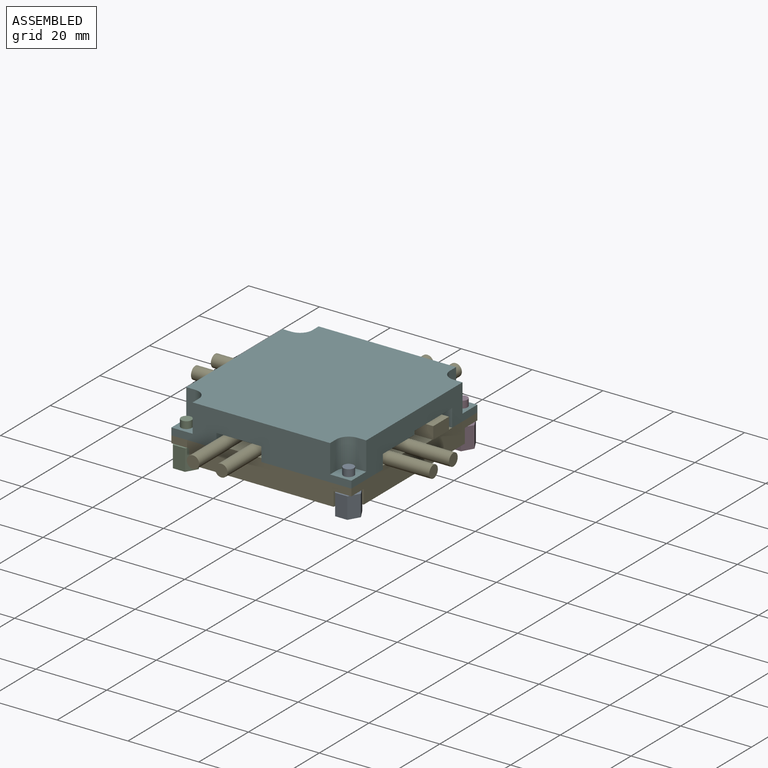
[diagram: assembled view]
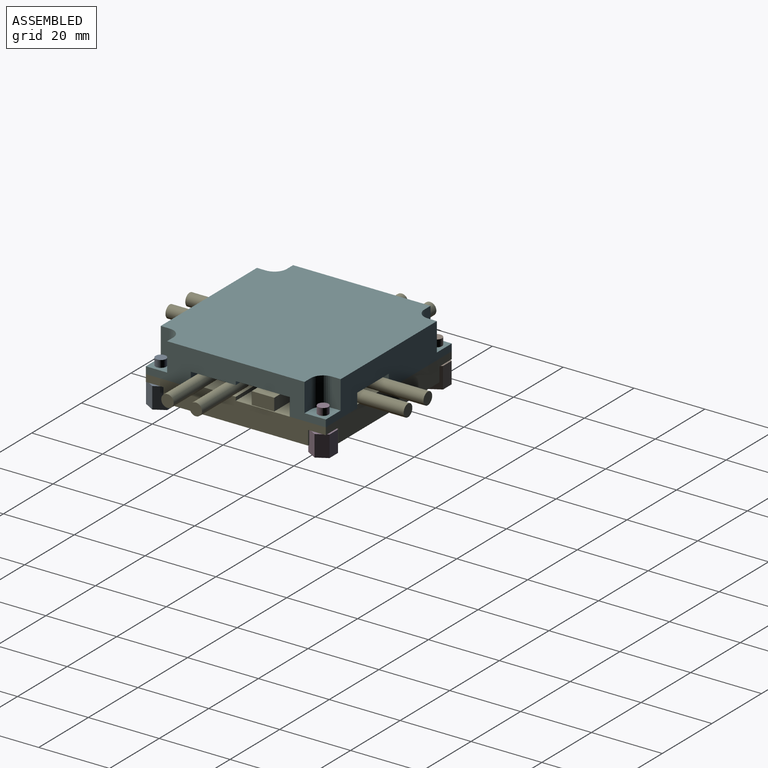
[diagram: assembled view, second angle]
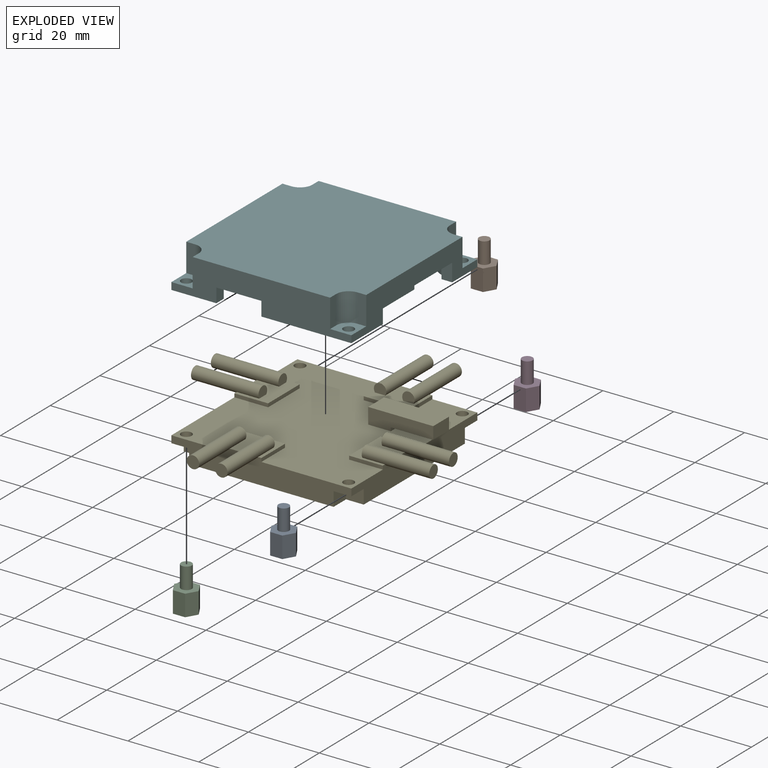
[diagram: exploded view]
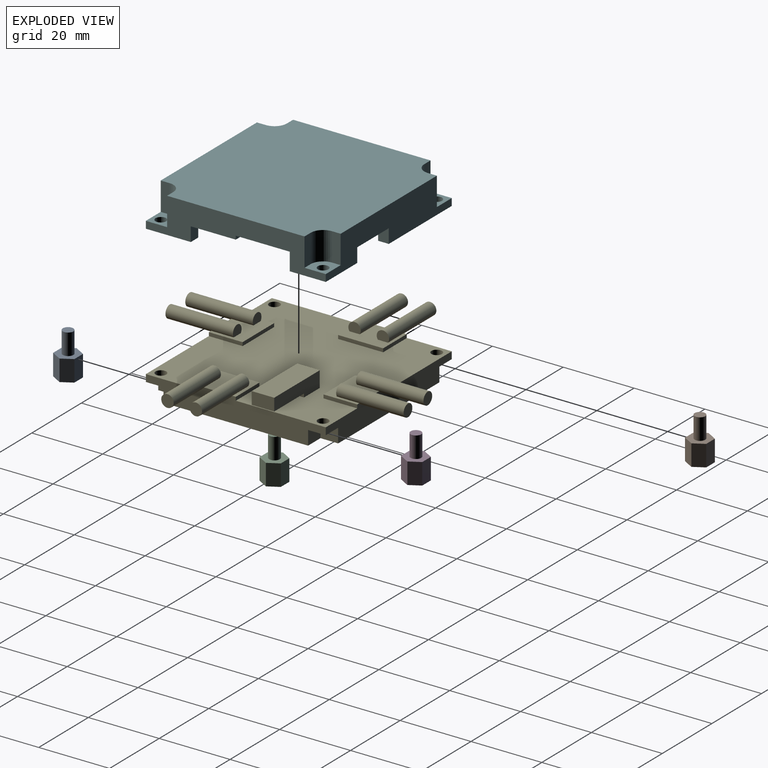
[diagram: exploded view, second angle]
ASSEMBLY  parts=6 mates=5
PART A: 12 faces, bbox 6.9x6x12 mm
  f0: plane 6x3mm, normal (-0.87,0.5,0), area 20.8mm2, adj f1,f6,f7,f9
  f1: plane 6x3mm, normal (-0.87,-0.5,0), area 20.8mm2, adj f0,f2,f7,f9
  f2: plane 6x3.46mm, normal (0,-1,0), area 20.8mm2, adj f1,f3,f7,f9
  f3: plane 6x3mm, normal (0.87,-0.5,0), area 20.8mm2, adj f2,f4,f7,f9
  f4: plane 6x3mm, normal (0.87,0.5,0), area 20.8mm2, adj f3,f6,f7,f9
  f5: cylinder r=1.5mm len=4mm, axis (0,0,-1), area 37.7mm2, adj f7,f8
  f6: plane 6x3.46mm, normal (0,1,0), area 20.8mm2, adj f0,f4,f7,f9
  f7: plane 6.93x6mm, normal (0,0,-1), area 24.1mm2, adj f0,f1,f2,f3,f4,f5,f6
  f8: plane 3x3mm, normal (0,0,-1), area 7.1mm2, adj f5
  f9: plane 6.93x6mm, normal (0,0,1), area 24.1mm2, adj f0,f1,f2,f3,f4,f6,f10
  f10: cylinder r=1.5mm len=6mm, axis (0,0,-1), area 56.5mm2, adj f9,f11
  f11: plane 3x3mm, normal (0,0,1), area 7.1mm2, adj f10
PART B: same geometry as A
PART C: same geometry as A
PART D: same geometry as A
PART E: 69 faces, bbox 76.2x76.2x10.5 mm
  f0: plane 50.8x7mm, normal (1,0,0), area 274.5mm2, adj f1,f2,f9,f13,f26,f28,f47,f49
  f1: plane 50.8x7mm, normal (0,1,0), area 274.5mm2, adj f0,f2,f8,f10,f22,f24,f38,f40
  f2: plane 50.8x50.8mm, normal (0,0,-1), area 2480.6mm2, adj f0,f1,f8,f9,f57,f58,f60,f61
  f3: cylinder r=1.5mm len=3mm, axis (0,0,-1), area 18.8mm2, adj f50,f68
  f4: cylinder r=1.5mm len=3mm, axis (0,0,-1), area 18.8mm2, adj f50,f65
  f5: cylinder r=1.5mm len=3mm, axis (0,0,-1), area 18.8mm2, adj f50,f62
  f6: cylinder r=1.5mm len=3mm, axis (0,0,-1), area 18.8mm2, adj f50,f59
  f7: plane 6.35x1mm, normal (1,0,0), area 6.4mm2, adj f50,f51,f53,f55
  f8: plane 50.8x7mm, normal (-1,0,0), area 274.5mm2, adj f1,f2,f9,f11,f18,f20,f41,f43
  f9: plane 50.8x7mm, normal (0,-1,0), area 274.5mm2, adj f0,f2,f8,f12,f14,f16,f44,f46
  f10: plane 12.7x9.53mm, normal (0,0,1), area 84.5mm2, adj f1,f22,f24,f34,f35,f38,f39,f40
  f11: plane 12.7x9.53mm, normal (0,0,1), area 84.5mm2, adj f8,f18,f20,f32,f33,f41,f42,f43
  f12: plane 12.7x9.53mm, normal (0,0,1), area 84.5mm2, adj f9,f14,f16,f30,f31,f44,f45,f46
  f13: plane 12.7x9.53mm, normal (0,0,1), area 84.5mm2, adj f0,f26,f28,f36,f37,f47,f48,f49
  f14: cylinder r=1.75mm len=19.05mm, axis (0,1,0), area 188.1mm2, adj f9,f12,f15,f30
  f15: plane 3.5x3.5mm, normal (0,-1,0), area 9.6mm2, adj f14
  f16: cylinder r=1.75mm len=19.05mm, axis (0,1,0), area 188.1mm2, adj f9,f12,f17,f31
  f17: plane 3.5x3.5mm, normal (0,-1,0), area 9.6mm2, adj f16
  f18: cylinder r=1.75mm len=19.05mm, axis (1,0,0), area 188.1mm2, adj f8,f11,f19,f32
  f19: plane 3.5x3.5mm, normal (-1,0,0), area 9.6mm2, adj f18
  f20: cylinder r=1.75mm len=19.05mm, axis (1,0,0), area 188.1mm2, adj f8,f11,f21,f33
  f21: plane 3.5x3.5mm, normal (-1,0,0), area 9.6mm2, adj f20
  f22: cylinder r=1.75mm len=19.05mm, axis (0,-1,0), area 188.1mm2, adj f1,f10,f23,f34
  f23: plane 3.5x3.5mm, normal (0,1,0), area 9.6mm2, adj f22
  f24: cylinder r=1.75mm len=19.05mm, axis (0,-1,0), area 188.1mm2, adj f1,f10,f25,f35
  f25: plane 3.5x3.5mm, normal (0,1,0), area 9.6mm2, adj f24
  f26: cylinder r=1.75mm len=19.05mm, axis (-1,0,0), area 188.1mm2, adj f0,f13,f27,f36
  f27: plane 3.5x3.5mm, normal (1,0,0), area 9.6mm2, adj f26
  f28: cylinder r=1.75mm len=19.05mm, axis (-1,0,0), area 188.1mm2, adj f0,f13,f29,f37
  f29: plane 3.5x3.5mm, normal (1,0,0), area 9.6mm2, adj f28
  f30: plane 3.5x2.75mm, normal (0,1,0), area 8.1mm2, adj f12,f14
  f31: plane 3.5x2.75mm, normal (0,1,0), area 8.1mm2, adj f12,f16
  f32: plane 3.5x2.75mm, normal (1,0,0), area 8.1mm2, adj f11,f18
  f33: plane 3.5x2.75mm, normal (1,0,0), area 8.1mm2, adj f11,f20
  f34: plane 3.5x2.75mm, normal (0,-1,0), area 8.1mm2, adj f10,f22
  f35: plane 3.5x2.75mm, normal (0,-1,0), area 8.1mm2, adj f10,f24
  f36: plane 3.5x2.75mm, normal (-1,0,0), area 8.1mm2, adj f13,f26
  f37: plane 3.5x2.75mm, normal (-1,0,0), area 8.1mm2, adj f13,f28
  f38: plane 9.53x1mm, normal (1,0,0), area 9.5mm2, adj f1,f10,f39,f50
  f39: plane 12.7x1mm, normal (0,-1,0), area 12.7mm2, adj f10,f38,f40,f50
  f40: plane 9.53x1mm, normal (-1,0,0), area 9.5mm2, adj f1,f10,f39,f50
  f41: plane 9.53x1mm, normal (0,1,0), area 9.5mm2, adj f8,f11,f42,f50
  f42: plane 12.7x1mm, normal (1,0,0), area 12.7mm2, adj f11,f41,f43,f50
  f43: plane 9.53x1mm, normal (0,-1,0), area 9.5mm2, adj f8,f11,f42,f50
  f44: plane 9.53x1mm, normal (-1,0,0), area 9.5mm2, adj f9,f12,f45,f50
  f45: plane 12.7x1mm, normal (0,1,0), area 12.7mm2, adj f12,f44,f46,f50
  f46: plane 9.53x1mm, normal (1,0,0), area 9.5mm2, adj f9,f12,f45,f50
  f47: plane 9.53x1mm, normal (0,-1,0), area 9.5mm2, adj f0,f13,f48,f50
  f48: plane 12.7x1mm, normal (-1,0,0), area 12.7mm2, adj f13,f47,f49,f50
  f49: plane 9.53x1mm, normal (0,1,0), area 9.5mm2, adj f0,f13,f48,f50
  f50: plane 50.8x50.8mm, normal (0,0,1), area 2028.2mm2, adj f0,f1,f3,f4,f5,f6,f7,f8
  f51: plane 18.35x4.5mm, normal (0,1,0), area 70.6mm2, adj f7,f50,f52,f54,f55,f56
  f52: plane 6.35x4.5mm, normal (-1,0,0), area 28.6mm2, adj f50,f51,f53,f54
  f53: plane 18.35x4.5mm, normal (0,-1,0), area 70.6mm2, adj f7,f50,f52,f54,f55,f56
  f54: plane 18.35x6.35mm, normal (0,0,1), area 116.5mm2, adj f51,f52,f53,f56
  f55: plane 12x6.35mm, normal (0,0,-1), area 76.2mm2, adj f7,f51,f53,f56
  f56: plane 6.35x3.5mm, normal (1,0,0), area 22.2mm2, adj f51,f53,f54,f55
  f57: plane 5x4mm, normal (1,0,0), area 20mm2, adj f2,f9,f58,f59
  f58: plane 5x4mm, normal (0,-1,0), area 20mm2, adj f0,f2,f57,f59
  f59: plane 5x5mm, normal (0,0,-1), area 17.9mm2, adj f0,f6,f9,f57,f58
  f60: plane 5x4mm, normal (1,0,0), area 20mm2, adj f1,f2,f61,f62
  f61: plane 5x4mm, normal (0,1,0), area 20mm2, adj f0,f2,f60,f62
  f62: plane 5x5mm, normal (0,0,-1), area 17.9mm2, adj f0,f1,f5,f60,f61
  f63: plane 5x4mm, normal (-1,0,0), area 20mm2, adj f2,f9,f64,f65
  f64: plane 5x4mm, normal (0,-1,0), area 20mm2, adj f2,f8,f63,f65
  f65: plane 5x5mm, normal (0,0,-1), area 17.9mm2, adj f4,f8,f9,f63,f64
  f66: plane 5x4mm, normal (-1,0,0), area 20mm2, adj f1,f2,f67,f68
  f67: plane 5x4mm, normal (0,1,0), area 20mm2, adj f2,f8,f66,f68
  f68: plane 5x5mm, normal (0,0,-1), area 17.9mm2, adj f1,f3,f8,f66,f67
PART F: 52 faces, bbox 50.8x50.8x10 mm
  f0: plane 25.4x12.7mm, normal (0,0,-1), area 120.8mm2, adj f9,f10,f14,f31,f32,f33,f40,f49
  f1: plane 25.4x12.7mm, normal (0,0,-1), area 120.8mm2, adj f2,f9,f12,f33,f34,f35,f46,f51
  f2: plane 50.8x10mm, normal (0,1,0), area 361.2mm2, adj f1,f3,f4,f6,f7,f9,f25,f26
  f3: plane 12.7x10.16mm, normal (0,0,-1), area 75mm2, adj f2,f4,f13,f29,f35,f36,f41,f48
  f4: plane 50.8x10mm, normal (1,0,0), area 285mm2, adj f2,f3,f5,f7,f14,f15,f22,f23
  f5: plane 25.4x12.7mm, normal (0,0,-1), area 120.8mm2, adj f4,f11,f14,f29,f30,f31,f38,f45
  f6: plane 6x6mm, normal (0,0,1), area 26.3mm2, adj f2,f9,f12,f16,f26,f27
  f7: plane 6x6mm, normal (0,0,1), area 26.3mm2, adj f2,f4,f13,f23,f24,f25
  f8: plane 6x6mm, normal (0,0,1), area 26.3mm2, adj f9,f10,f14,f17,f18,f19
  f9: plane 50.8x10mm, normal (-1,0,0), area 361.2mm2, adj f0,f1,f2,f6,f8,f14,f16,f17
  f10: cylinder r=1.5mm len=3mm, axis (0,0,-1), area 18.8mm2, adj f0,f8
  f11: cylinder r=1.5mm len=3mm, axis (0,0,-1), area 18.8mm2, adj f5,f15
  f12: cylinder r=1.5mm len=3mm, axis (0,0,-1), area 18.8mm2, adj f1,f6
  f13: cylinder r=1.5mm len=3mm, axis (0,0,-1), area 18.8mm2, adj f3,f7
  f14: plane 50.8x10mm, normal (0,-1,0), area 361.2mm2, adj f0,f4,f5,f8,f9,f15,f19,f20
  f15: plane 6x6mm, normal (0,0,1), area 26.3mm2, adj f4,f11,f14,f20,f21,f22
  f16: plane 8x2.5mm, normal (0,1,0), area 20mm2, adj f6,f9,f27,f28
  f17: plane 8x2.5mm, normal (0,-1,0), area 20mm2, adj f8,f9,f18,f28
  f18: cylinder r=3.5mm len=8mm, axis (0,0,-1), area 44mm2, adj f8,f17,f19,f28
  f19: plane 8x2.5mm, normal (-1,0,0), area 20mm2, adj f8,f14,f18,f28
  f20: plane 8x2.5mm, normal (1,0,0), area 20mm2, adj f14,f15,f21,f28
  f21: cylinder r=3.5mm len=8mm, axis (0,0,-1), area 44mm2, adj f15,f20,f22,f28
  f22: plane 8x2.5mm, normal (0,-1,0), area 20mm2, adj f4,f15,f21,f28
  f23: plane 8x2.5mm, normal (0,1,0), area 20mm2, adj f4,f7,f24,f28
  f24: cylinder r=3.5mm len=8mm, axis (0,0,-1), area 44mm2, adj f7,f23,f25,f28
  f25: plane 8x2.5mm, normal (1,0,0), area 20mm2, adj f2,f7,f24,f28
  f26: plane 8x2.5mm, normal (-1,0,0), area 20mm2, adj f2,f6,f27,f28
  f27: cylinder r=3.5mm len=8mm, axis (0,0,-1), area 44mm2, adj f6,f16,f26,f28
  f28: plane 50.8x50.8mm, normal (0,0,1), area 2447.2mm2, adj f2,f4,f9,f14,f16,f17,f18,f19
  f29: plane 33.84x7.5mm, normal (-1,0,0), area 126.8mm2, adj f3,f5,f30,f36,f37,f41,f42,f43
  f30: cylinder r=6mm len=7.5mm, axis (0,0,-1), area 63.2mm2, adj f5,f29,f31,f37
  f31: plane 33.84x7.5mm, normal (0,1,0), area 203mm2, adj f0,f5,f30,f32,f37,f38,f39,f40
  f32: cylinder r=6mm len=7.5mm, axis (0,0,-1), area 63.2mm2, adj f0,f31,f33,f37
  f33: plane 33.84x7.5mm, normal (1,0,0), area 203mm2, adj f0,f1,f32,f34,f37,f49,f50,f51
  f34: cylinder r=6mm len=7.5mm, axis (0,0,-1), area 63.2mm2, adj f1,f33,f35,f37
  f35: plane 33.84x7.5mm, normal (0,-1,0), area 203mm2, adj f1,f3,f34,f36,f37,f46,f47,f48
  f36: cylinder r=6mm len=7.5mm, axis (0,0,-1), area 63.2mm2, adj f3,f29,f35,f37
  f37: plane 44.8x44.8mm, normal (0,0,-1), area 1916.9mm2, adj f29,f30,f31,f32,f33,f34,f35,f36
  f38: plane 4x3mm, normal (-1,0,0), area 12mm2, adj f5,f14,f31,f39
  f39: plane 12.7x3mm, normal (0,0,-1), area 38.1mm2, adj f14,f31,f38,f40
  f40: plane 4x3mm, normal (1,0,0), area 12mm2, adj f0,f14,f31,f39
  f41: plane 5x3mm, normal (0,-1,0), area 15mm2, adj f3,f4,f29,f42
  f42: plane 15.24x3mm, normal (0,0,-1), area 45.7mm2, adj f4,f29,f41,f43
  f43: plane 3x1mm, normal (0,1,0), area 3mm2, adj f4,f29,f42,f44
  f44: plane 12.7x3mm, normal (0,0,-1), area 38.1mm2, adj f4,f29,f43,f45
  f45: plane 4x3mm, normal (0,1,0), area 12mm2, adj f4,f5,f29,f44
  f46: plane 4x3mm, normal (1,0,0), area 12mm2, adj f1,f2,f35,f47
  f47: plane 12.7x3mm, normal (0,0,-1), area 38.1mm2, adj f2,f35,f46,f48
  f48: plane 4x3mm, normal (-1,0,0), area 12mm2, adj f2,f3,f35,f47
  f49: plane 4x3mm, normal (0,1,0), area 12mm2, adj f0,f9,f33,f50
  f50: plane 12.7x3mm, normal (0,0,-1), area 38.1mm2, adj f9,f33,f49,f51
  f51: plane 4x3mm, normal (0,-1,0), area 12mm2, adj f1,f9,f33,f50
PLACE A t=(18.09,-36.87,-24.04)mm
PLACE B t=(-27.71,8.93,-24.04)mm
PLACE C t=(-27.71,-36.87,-24.04)mm
PLACE D t=(18.09,8.93,-24.04)mm
PLACE E t=(-81.31,39.47,-22.04)mm
PLACE F t=(1.09,31.77,-16.04)mm
MATE fastened F.f11 <-> E.f6  axis (0,0,-1) through (18.09,-36.87,-16.04)mm
MATE fastened C.f5 <-> E.f4  axis (0,0,1) through (-27.71,-36.87,-18.04)mm
MATE fastened D.f5 <-> E.f5  axis (0,0,1) through (18.09,8.93,-18.04)mm
MATE fastened B.f5 <-> E.f3  axis (0,0,1) through (-27.71,8.93,-18.04)mm
MATE fastened A.f5 <-> E.f6  axis (0,0,1) through (18.09,-36.87,-18.04)mm
